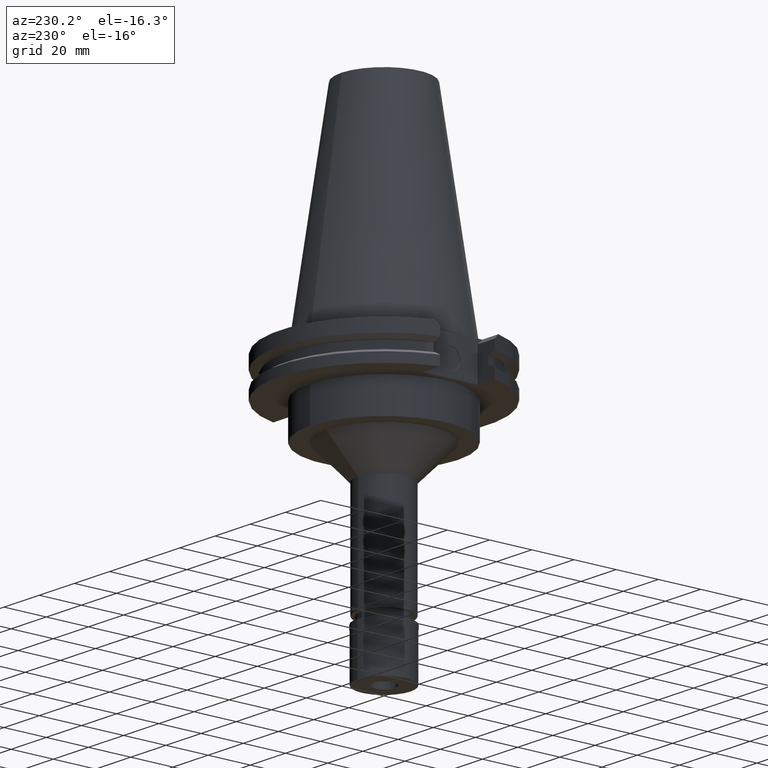
[diagram: clean part render]
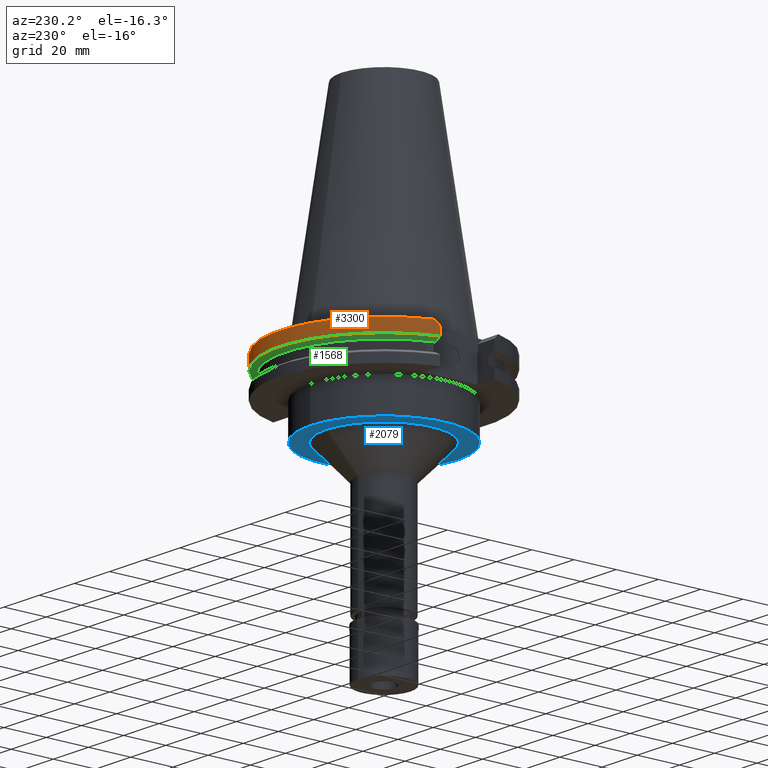
[diagram: same view with three faces highlighted in distinct colors, each labeled with its STEP entity id]
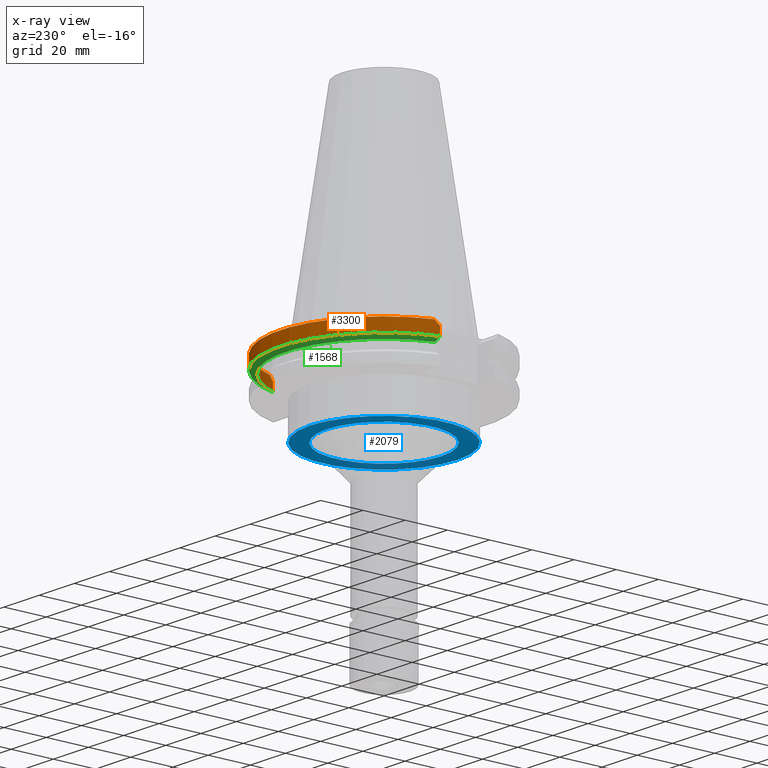
[diagram: x-ray of the same camera — body ghosted, the three highlighted faces saturated]
A machine part, auxiliary view with three faces highlighted in distinct colors.
The next image is the same camera in x-ray (body ghosted, the three faces saturated) — at least one of them is partly hidden behind the body in this view.
Their STEP definitions:

[orange] entity #3300 — the highlighted cylindrical surface (partial cylindrical patch) has radius 49.2125 mm, axis along (0, 0, -1).
#6 = CARTESIAN_POINT ( 'NONE',  ( 47.47671146204000081, 12.95500000000000007, -7.601333230924999462 ) ) ;
#95 = EDGE_CURVE ( 'NONE', #684, #1507, #1378, .T. ) ;
#115 = CYLINDRICAL_SURFACE ( 'NONE', #990, 49.21249999999999858 ) ;
#214 = DIRECTION ( 'NONE',  ( 0.9647287063660957562, 0.2632461264922989486, 0.0000000000000000000 ) ) ;
#241 = VERTEX_POINT ( 'NONE', #2020 ) ;
#293 = LINE ( 'NONE', #2319, #3306 ) ;
#296 = EDGE_CURVE ( 'NONE', #2682, #241, #707, .T. ) ;
#379 = ORIENTED_EDGE ( 'NONE', *, *, #95, .T. ) ;
#443 = EDGE_CURVE ( 'NONE', #2260, #1507, #1618, .T. ) ;
#523 = DIRECTION ( 'NONE',  ( 0.0000000000000000000, 0.0000000000000000000, -1.000000000000000000 ) ) ;
#571 = EDGE_CURVE ( 'NONE', #674, #241, #3225, .T. ) ;
#617 = DIRECTION ( 'NONE',  ( 0.0000000000000000000, 0.0000000000000000000, -1.000000000000000000 ) ) ;
#667 = ORIENTED_EDGE ( 'NONE', *, *, #1835, .F. ) ;
#674 = VERTEX_POINT ( 'NONE', #795 ) ;
#684 = VERTEX_POINT ( 'NONE', #6 ) ;
#707 = CIRCLE ( 'NONE', #1094, 49.21249999999999858 ) ;
#716 = DIRECTION ( 'NONE',  ( 0.0000000000000000000, 0.0000000000000000000, 1.000000000000000000 ) ) ;
#781 = CARTESIAN_POINT ( 'NONE',  ( -47.27588310256999904, 13.69098379592999848, -2.964016204073000260 ) ) ;
#795 = CARTESIAN_POINT ( 'NONE',  ( 47.47671146204000081, 12.95500000000000007, -3.700000000000000178 ) ) ;
#877 = ORIENTED_EDGE ( 'NONE', *, *, #1907, .F. ) ;
#990 = AXIS2_PLACEMENT_3D ( 'NONE', #2918, #617, #2417 ) ;
#1074 = CARTESIAN_POINT ( 'NONE',  ( 0.0000000000000000000, 2.603354165626999772E-14, -1.500000000000000000 ) ) ;
#1094 = AXIS2_PLACEMENT_3D ( 'NONE', #1074, #523, #1521 ) ;
#1219 = CARTESIAN_POINT ( 'NONE',  ( -47.47671146204000081, 12.95500000000000007, -3.700000000000000178 ) ) ;
#1320 = DIRECTION ( 'NONE',  ( -2.258389479161999877E-13, -3.642563676067000065E-14, 1.000000000000000000 ) ) ;
#1378 = CIRCLE ( 'NONE', #2411, 49.21250000000001279 ) ;
#1446 = CARTESIAN_POINT ( 'NONE',  ( 47.47671146204000081, 12.95500000000000007, -3.700000000000000178 ) ) ;
#1460 = CARTESIAN_POINT ( 'NONE',  ( 46.82089417396999664, 15.15499999999999936, -1.500000000000000000 ) ) ;
#1507 = VERTEX_POINT ( 'NONE', #3207 ) ;
#1521 = DIRECTION ( 'NONE',  ( 0.0000000000000000000, 1.000000000000000000, 0.0000000000000000000 ) ) ;
#1550 = B_SPLINE_CURVE_WITH_KNOTS ( 'NONE', 3,
 ( #2042, #3038, #781, #1805 ),
 .UNSPECIFIED., .F., .F.,
 ( 4, 4 ),
 ( 0.0000000000000000000, 1.000000000000000000 ),
 .UNSPECIFIED. ) ;
#1618 = LINE ( 'NONE', #2857, #3294 ) ;
#1716 = CARTESIAN_POINT ( 'NONE',  ( 47.27588310256999904, 13.69098379592999848, -2.964016204073000260 ) ) ;
#1805 = CARTESIAN_POINT ( 'NONE',  ( -47.47671146204000081, 12.95500000000000007, -3.700000000000000178 ) ) ;
#1835 = EDGE_CURVE ( 'NONE', #684, #674, #293, .T. ) ;
#1907 = EDGE_CURVE ( 'NONE', #2682, #2260, #1550, .T. ) ;
#2020 = CARTESIAN_POINT ( 'NONE',  ( 46.82089417396999664, 15.15499999999999936, -1.500000000000000000 ) ) ;
#2042 = CARTESIAN_POINT ( 'NONE',  ( -46.82089417396999664, 15.15499999999999936, -1.500000000000000000 ) ) ;
#2106 = DIRECTION ( 'NONE',  ( -2.276602297542000122E-13, 3.460435492263999937E-14, -1.000000000000000000 ) ) ;
#2260 = VERTEX_POINT ( 'NONE', #1219 ) ;
#2306 = ORIENTED_EDGE ( 'NONE', *, *, #296, .T. ) ;
#2316 = EDGE_LOOP ( 'NONE', ( #877, #2306, #2803, #667, #379, #3074 ) ) ;
#2319 = CARTESIAN_POINT ( 'NONE',  ( 47.47671146204000081, 12.95500000000000007, -7.601333230924999462 ) ) ;
#2411 = AXIS2_PLACEMENT_3D ( 'NONE', #3228, #716, #214 ) ;
#2417 = DIRECTION ( 'NONE',  ( 0.0000000000000000000, -1.000000000000000000, 0.0000000000000000000 ) ) ;
#2663 = FACE_OUTER_BOUND ( 'NONE', #2316, .T. ) ;
#2682 = VERTEX_POINT ( 'NONE', #3244 ) ;
#2803 = ORIENTED_EDGE ( 'NONE', *, *, #571, .F. ) ;
#2857 = CARTESIAN_POINT ( 'NONE',  ( -47.47671146204000081, 12.95500000000000007, -3.700000000000000178 ) ) ;
#2918 = CARTESIAN_POINT ( 'NONE',  ( 0.0000000000000000000, 2.603354165626999772E-14, 112.5799999999999983 ) ) ;
#3038 = CARTESIAN_POINT ( 'NONE',  ( -47.05739607796999735, 14.42433483211999956, -2.230665167879999800 ) ) ;
#3074 = ORIENTED_EDGE ( 'NONE', *, *, #443, .F. ) ;
#3207 = CARTESIAN_POINT ( 'NONE',  ( -47.47671146204000081, 12.95500000000000007, -7.601333230924999462 ) ) ;
#3225 = B_SPLINE_CURVE_WITH_KNOTS ( 'NONE', 3,
 ( #1446, #1716, #3251, #1460 ),
 .UNSPECIFIED., .F., .F.,
 ( 4, 4 ),
 ( 0.0000000000000000000, 1.000000000000000000 ),
 .UNSPECIFIED. ) ;
#3228 = CARTESIAN_POINT ( 'NONE',  ( 0.0000000000000000000, 1.121722380078999823E-14, -7.601333230925999551 ) ) ;
#3244 = CARTESIAN_POINT ( 'NONE',  ( -46.82089417396999664, 15.15499999999999936, -1.500000000000000000 ) ) ;
#3251 = CARTESIAN_POINT ( 'NONE',  ( 47.05739607796999735, 14.42433483211999956, -2.230665167879999800 ) ) ;
#3294 = VECTOR ( 'NONE', #2106, 1000.000000000000000 ) ;
#3300 = ADVANCED_FACE ( 'NONE', ( #2663 ), #115, .T. ) ;
#3306 = VECTOR ( 'NONE', #1320, 1000.000000000000000 ) ;

[blue] entity #2079 — the highlighted planar face has unit normal (0, 0, -1).
#83 = DIRECTION ( 'NONE',  ( 0.0000000000000000000, 0.0000000000000000000, -1.000000000000000000 ) ) ;
#120 = CARTESIAN_POINT ( 'NONE',  ( 0.0000000000000000000, 0.0000000000000000000, -35.00000000000000000 ) ) ;
#144 = AXIS2_PLACEMENT_3D ( 'NONE', #744, #3067, #2827 ) ;
#273 = DIRECTION ( 'NONE',  ( 0.0000000000000000000, 0.0000000000000000000, -1.000000000000000000 ) ) ;
#366 = ORIENTED_EDGE ( 'NONE', *, *, #2737, .F. ) ;
#538 = DIRECTION ( 'NONE',  ( 0.0000000000000000000, -1.000000000000000000, 0.0000000000000000000 ) ) ;
#598 = DIRECTION ( 'NONE',  ( 0.0000000000000000000, -1.000000000000000000, 0.0000000000000000000 ) ) ;
#648 = CARTESIAN_POINT ( 'NONE',  ( 0.0000000000000000000, 2.603354165626999772E-14, -35.00000000000000000 ) ) ;
#675 = DIRECTION ( 'NONE',  ( 0.0000000000000000000, 1.000000000000000000, 0.0000000000000000000 ) ) ;
#744 = CARTESIAN_POINT ( 'NONE',  ( 0.0000000000000000000, 2.603354165626999772E-14, -35.00000000000000000 ) ) ;
#762 = VERTEX_POINT ( 'NONE', #1270 ) ;
#778 = CARTESIAN_POINT ( 'NONE',  ( 0.0000000000000000000, 0.0000000000000000000, -35.00000000000000000 ) ) ;
#864 = EDGE_LOOP ( 'NONE', ( #366, #2612 ) ) ;
#1020 = AXIS2_PLACEMENT_3D ( 'NONE', #2400, #83, #598 ) ;
#1102 = FACE_BOUND ( 'NONE', #864, .T. ) ;
#1122 = AXIS2_PLACEMENT_3D ( 'NONE', #778, #273, #538 ) ;
#1167 = CIRCLE ( 'NONE', #1764, 27.25000000000000000 ) ;
#1270 = CARTESIAN_POINT ( 'NONE',  ( 0.0000000000000000000, 34.92499999999999716, -35.00000000000000000 ) ) ;
#1362 = FACE_OUTER_BOUND ( 'NONE', #2244, .T. ) ;
#1461 = DIRECTION ( 'NONE',  ( 0.0000000000000000000, -1.000000000000000000, 0.0000000000000000000 ) ) ;
#1606 = CIRCLE ( 'NONE', #1656, 34.92499999999999716 ) ;
#1656 = AXIS2_PLACEMENT_3D ( 'NONE', #648, #3271, #1461 ) ;
#1764 = AXIS2_PLACEMENT_3D ( 'NONE', #120, #2152, #675 ) ;
#1920 = CIRCLE ( 'NONE', #1122, 27.25000000000000000 ) ;
#2079 = ADVANCED_FACE ( 'NONE', ( #1362, #1102 ), #2120, .T. ) ;
#2120 = PLANE ( 'NONE',  #1020 ) ;
#2147 = VERTEX_POINT ( 'NONE', #2774 ) ;
#2152 = DIRECTION ( 'NONE',  ( 0.0000000000000000000, 0.0000000000000000000, -1.000000000000000000 ) ) ;
#2238 = EDGE_CURVE ( 'NONE', #2147, #762, #1606, .T. ) ;
#2244 = EDGE_LOOP ( 'NONE', ( #2920, #2551 ) ) ;
#2283 = VERTEX_POINT ( 'NONE', #3303 ) ;
#2374 = EDGE_CURVE ( 'NONE', #762, #2147, #2884, .T. ) ;
#2400 = CARTESIAN_POINT ( 'NONE',  ( 0.0000000000000000000, 0.0000000000000000000, -35.00000000000000000 ) ) ;
#2401 = VERTEX_POINT ( 'NONE', #2556 ) ;
#2434 = EDGE_CURVE ( 'NONE', #2401, #2283, #1920, .T. ) ;
#2551 = ORIENTED_EDGE ( 'NONE', *, *, #2238, .F. ) ;
#2556 = CARTESIAN_POINT ( 'NONE',  ( 0.0000000000000000000, -27.25000000000000000, -35.00000000000000000 ) ) ;
#2612 = ORIENTED_EDGE ( 'NONE', *, *, #2434, .F. ) ;
#2737 = EDGE_CURVE ( 'NONE', #2283, #2401, #1167, .T. ) ;
#2774 = CARTESIAN_POINT ( 'NONE',  ( 0.0000000000000000000, -34.92499999999999716, -35.00000000000000000 ) ) ;
#2827 = DIRECTION ( 'NONE',  ( 0.0000000000000000000, 1.000000000000000000, 0.0000000000000000000 ) ) ;
#2884 = CIRCLE ( 'NONE', #144, 34.92499999999999716 ) ;
#2920 = ORIENTED_EDGE ( 'NONE', *, *, #2374, .F. ) ;
#3067 = DIRECTION ( 'NONE',  ( 0.0000000000000000000, 0.0000000000000000000, 1.000000000000000000 ) ) ;
#3271 = DIRECTION ( 'NONE',  ( 0.0000000000000000000, 0.0000000000000000000, 1.000000000000000000 ) ) ;
#3303 = CARTESIAN_POINT ( 'NONE',  ( 0.0000000000000000000, 27.25000000000000000, -35.00000000000000000 ) ) ;

[green] entity #1568 — the highlighted conical surface has half-angle 60 deg.
#6 = CARTESIAN_POINT ( 'NONE',  ( 47.47671146204000081, 12.95500000000000007, -7.601333230924999462 ) ) ;
#24 = FACE_OUTER_BOUND ( 'NONE', #2005, .T. ) ;
#95 = EDGE_CURVE ( 'NONE', #684, #1507, #1378, .T. ) ;
#171 = CARTESIAN_POINT ( 'NONE',  ( 0.0000000000000000000, 1.121722380078999823E-14, -9.207500000002999840 ) ) ;
#214 = DIRECTION ( 'NONE',  ( 0.9647287063660957562, 0.2632461264922989486, 0.0000000000000000000 ) ) ;
#465 = CARTESIAN_POINT ( 'NONE',  ( -46.48531137864629414, 12.95500000000000007, -8.153529572835616079 ) ) ;
#530 = VERTEX_POINT ( 'NONE', #1164 ) ;
#684 = VERTEX_POINT ( 'NONE', #6 ) ;
#716 = DIRECTION ( 'NONE',  ( 0.0000000000000000000, 0.0000000000000000000, 1.000000000000000000 ) ) ;
#761 = CARTESIAN_POINT ( 'NONE',  ( -44.58657636813000380, 12.95500000000000007, -9.207500000000999663 ) ) ;
#812 = EDGE_CURVE ( 'NONE', #1507, #530, #3182, .T. ) ;
#942 = DIRECTION ( 'NONE',  ( 0.0000000000000000000, 0.0000000000000000000, 1.000000000000000000 ) ) ;
#976 = CARTESIAN_POINT ( 'NONE',  ( 44.58657636813000380, 12.95500000000000007, -9.207500000000999663 ) ) ;
#981 = CARTESIAN_POINT ( 'NONE',  ( -47.47671146204000081, 12.95500000000000007, -7.601333230924999462 ) ) ;
#1067 = CARTESIAN_POINT ( 'NONE',  ( 0.0000000000000000000, 1.121722380078999823E-14, -8.404416615464000984 ) ) ;
#1084 = CARTESIAN_POINT ( 'NONE',  ( 46.48531137229106491, 12.95500000000000007, -8.153529576370974752 ) ) ;
#1164 = CARTESIAN_POINT ( 'NONE',  ( -44.58657636813000380, 12.95500000000000007, -9.207500000000999663 ) ) ;
#1200 = ORIENTED_EDGE ( 'NONE', *, *, #2817, .T. ) ;
#1283 = CONICAL_SURFACE ( 'NONE', #2463, 47.82151877527000039, 1.047197551196400456 ) ;
#1378 = CIRCLE ( 'NONE', #2411, 49.21250000000001279 ) ;
#1490 = ORIENTED_EDGE ( 'NONE', *, *, #95, .F. ) ;
#1507 = VERTEX_POINT ( 'NONE', #3207 ) ;
#1527 = EDGE_CURVE ( 'NONE', #2983, #684, #2868, .T. ) ;
#1568 = ADVANCED_FACE ( 'NONE', ( #24 ), #1283, .T. ) ;
#1738 = DIRECTION ( 'NONE',  ( 0.0000000000000000000, 0.0000000000000000000, 1.000000000000000000 ) ) ;
#2005 = EDGE_LOOP ( 'NONE', ( #3041, #1490, #3254, #1200 ) ) ;
#2240 = CIRCLE ( 'NONE', #2979, 46.43053755053000486 ) ;
#2411 = AXIS2_PLACEMENT_3D ( 'NONE', #3228, #716, #214 ) ;
#2463 = AXIS2_PLACEMENT_3D ( 'NONE', #1067, #1738, #2999 ) ;
#2694 = CARTESIAN_POINT ( 'NONE',  ( 45.52193300765439687, 12.95500000000000007, -8.688918499396308448 ) ) ;
#2817 = EDGE_CURVE ( 'NONE', #2983, #530, #2240, .T. ) ;
#2868 = B_SPLINE_CURVE_WITH_KNOTS ( 'NONE', 3,
 ( #2933, #2694, #1084, #2901 ),
 .UNSPECIFIED., .F., .F.,
 ( 4, 4 ),
 ( 0.0000000000000000000, 1.000000000000000000 ),
 .UNSPECIFIED. ) ;
#2901 = CARTESIAN_POINT ( 'NONE',  ( 47.47671146204000081, 12.95500000000000007, -7.601333230924999462 ) ) ;
#2933 = CARTESIAN_POINT ( 'NONE',  ( 44.58657636813000380, 12.95500000000000007, -9.207500000000999663 ) ) ;
#2979 = AXIS2_PLACEMENT_3D ( 'NONE', #171, #942, #3210 ) ;
#2983 = VERTEX_POINT ( 'NONE', #976 ) ;
#2999 = DIRECTION ( 'NONE',  ( 0.0000000000000000000, 1.000000000000000000, 0.0000000000000000000 ) ) ;
#3041 = ORIENTED_EDGE ( 'NONE', *, *, #812, .F. ) ;
#3086 = CARTESIAN_POINT ( 'NONE',  ( -45.52193301400963321, 12.95500000000000007, -8.688918495860947999 ) ) ;
#3182 = B_SPLINE_CURVE_WITH_KNOTS ( 'NONE', 3,
 ( #981, #465, #3086, #761 ),
 .UNSPECIFIED., .F., .F.,
 ( 4, 4 ),
 ( 0.0000000000000000000, 1.000000000000000000 ),
 .UNSPECIFIED. ) ;
#3207 = CARTESIAN_POINT ( 'NONE',  ( -47.47671146204000081, 12.95500000000000007, -7.601333230924999462 ) ) ;
#3210 = DIRECTION ( 'NONE',  ( 0.9602855947900087452, 0.2790189535476025329, 0.0000000000000000000 ) ) ;
#3228 = CARTESIAN_POINT ( 'NONE',  ( 0.0000000000000000000, 1.121722380078999823E-14, -7.601333230925999551 ) ) ;
#3254 = ORIENTED_EDGE ( 'NONE', *, *, #1527, .F. ) ;